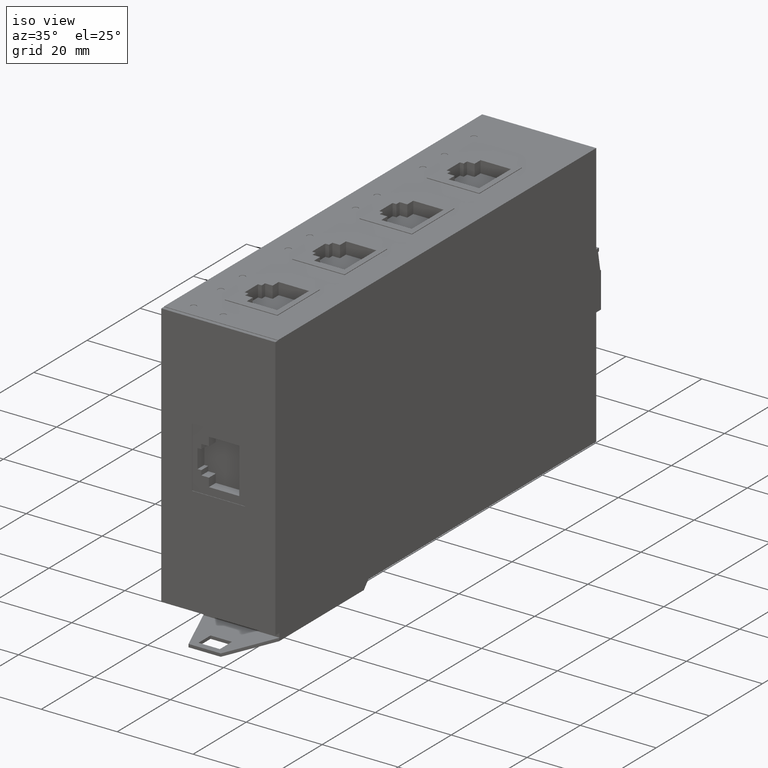
[diagram: clean part render]
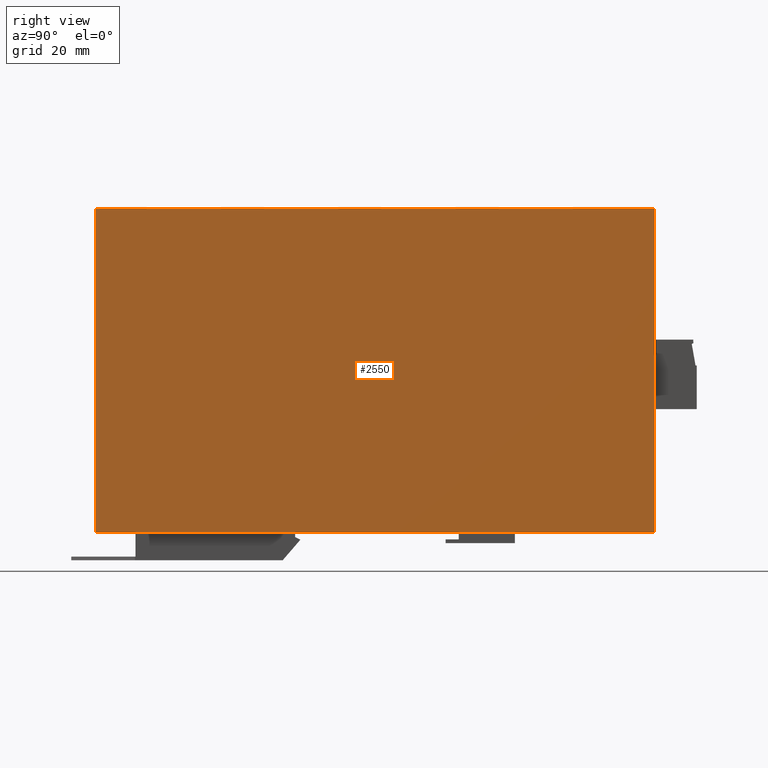
[diagram: tour spotlight — one face highlighted and labeled with its STEP entity id]
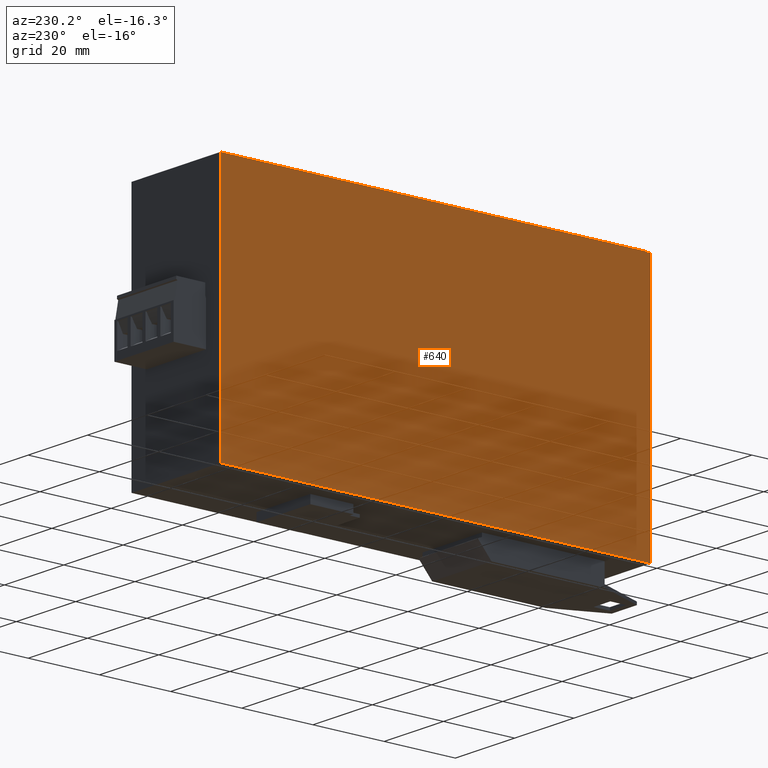
[diagram: tour spotlight — one face highlighted and labeled with its STEP entity id]
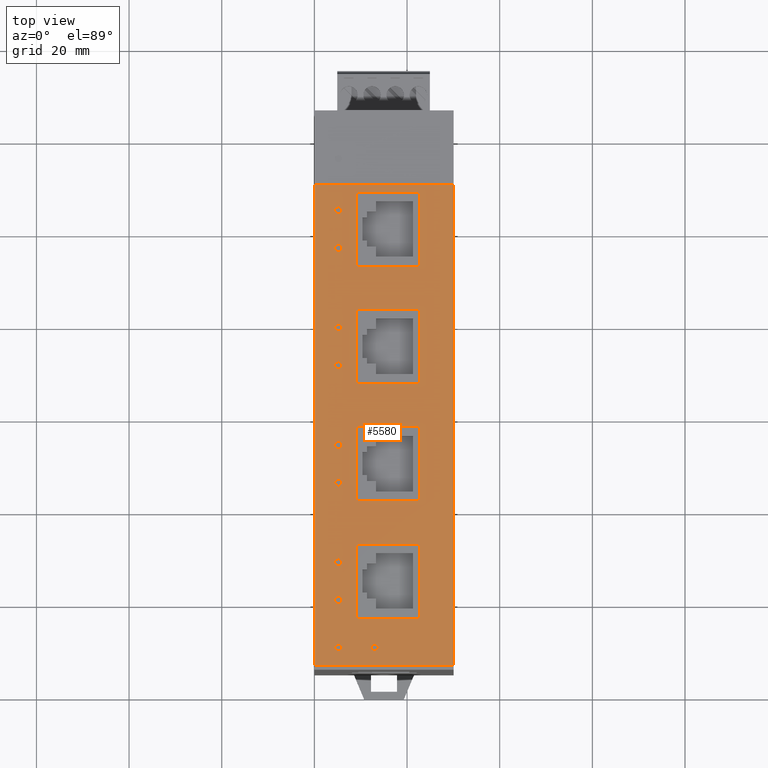
[diagram: tour spotlight — one face highlighted and labeled with its STEP entity id]
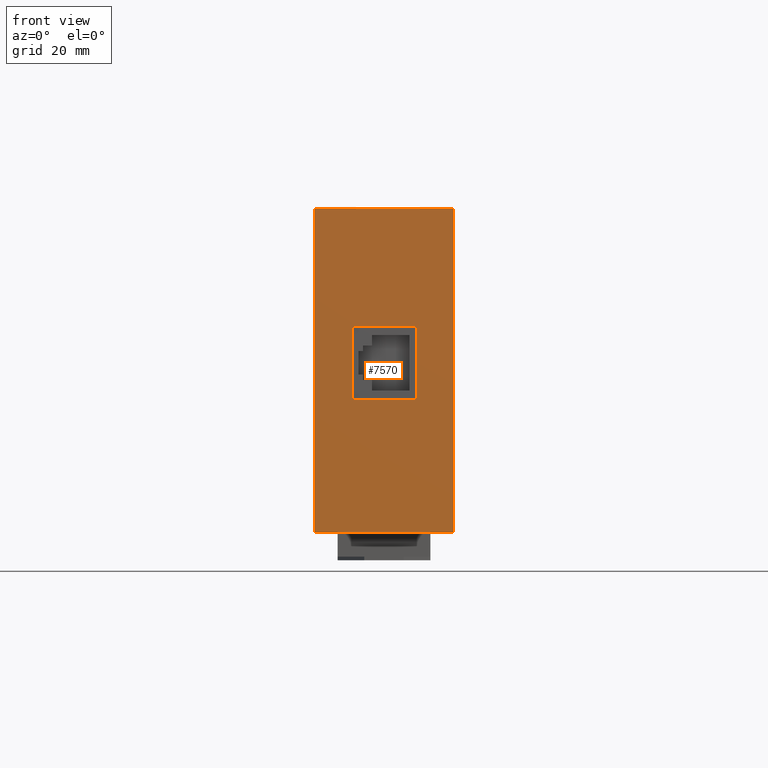
[diagram: tour spotlight — one face highlighted and labeled with its STEP entity id]
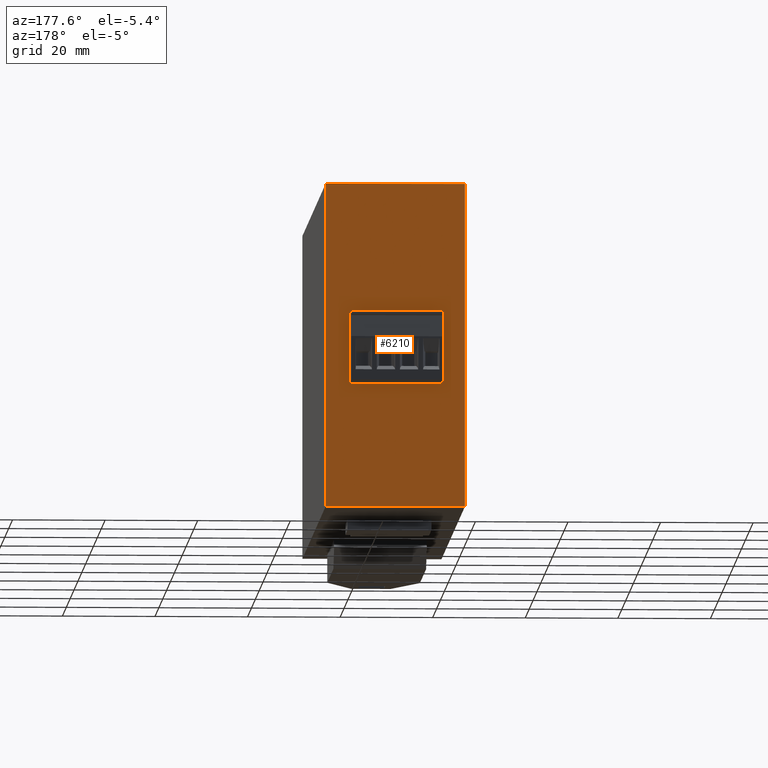
[diagram: tour spotlight — one face highlighted and labeled with its STEP entity id]
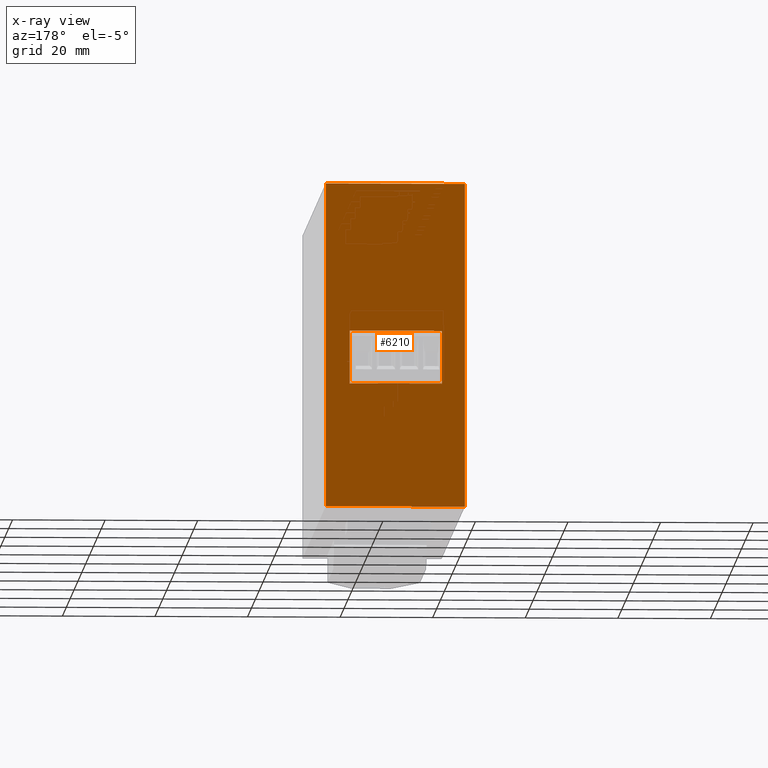
[diagram: x-ray of the same camera — body ghosted, this tour face saturated]
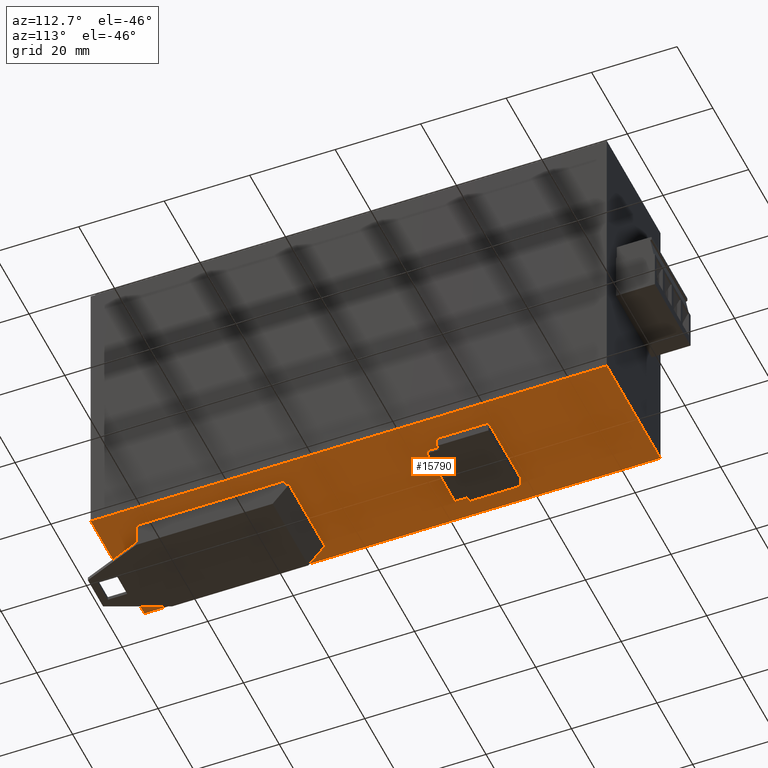
[diagram: tour spotlight — one face highlighted and labeled with its STEP entity id]
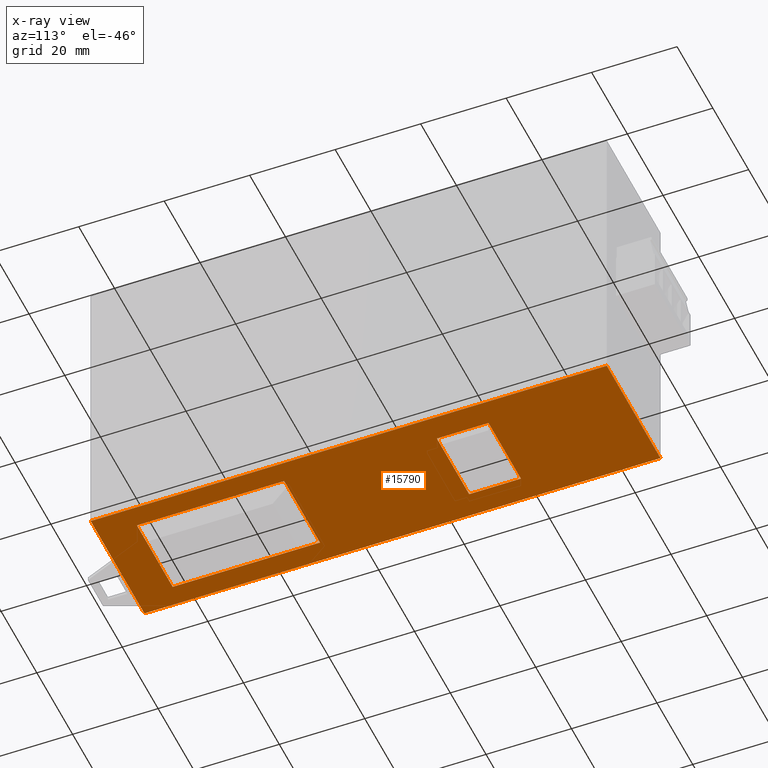
[diagram: x-ray of the same camera — body ghosted, this tour face saturated]
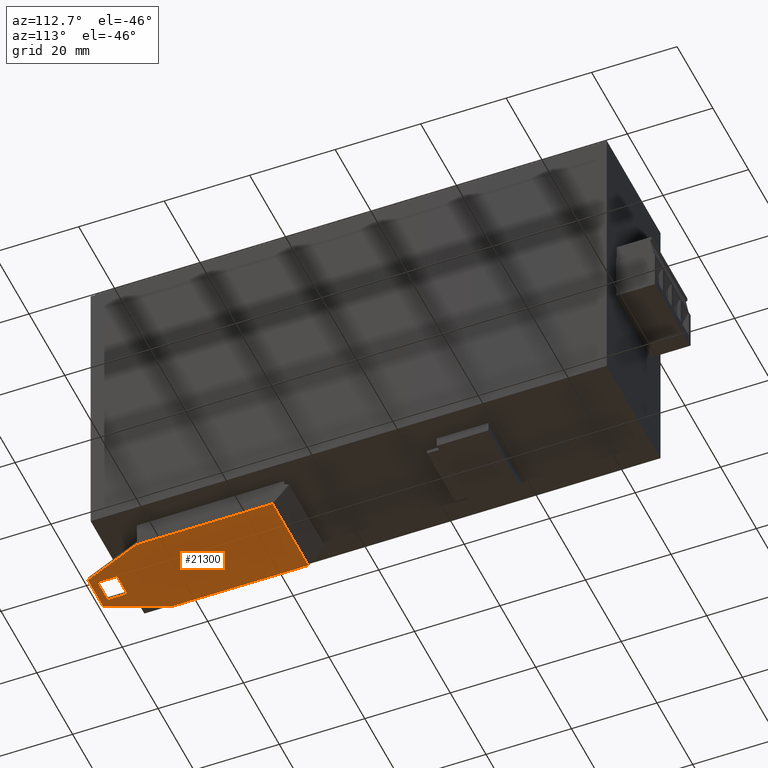
[diagram: tour spotlight — one face highlighted and labeled with its STEP entity id]
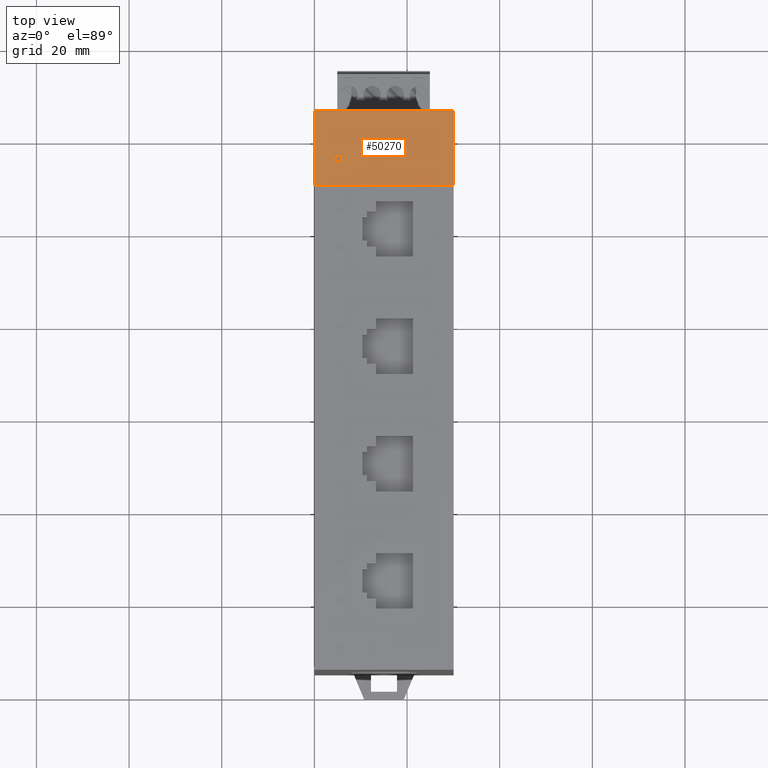
[diagram: tour spotlight — one face highlighted and labeled with its STEP entity id]
A machine part: a face-by-face anatomy tour. The part has 281 B-rep faces; the first image is the clean iso view, then the 8 largest visible faces are spotlighted one at a time (largest first), each with its STEP entity span.

Face 1 — right view, entity #2550. In plain terms, the highlighted planar face has unit normal (1, 0, 0).
Definition (entity closure, byte-faithful):
#700=CARTESIAN_POINT('',(-16.9973015873009,-61.6121031746032,0.));
#710=DIRECTION('',(0.,0.,1.));
#720=VECTOR('',#710,1.);
#730=LINE('',#700,#720);
#740=CARTESIAN_POINT('',(-16.9973015873009,-61.6121031746032,0.));
#750=VERTEX_POINT('',#740);
#760=CARTESIAN_POINT('',(-16.9973015873009,-61.6121031746032,0.1016));
#770=VERTEX_POINT('',#760);
#780=EDGE_CURVE('',#750,#770,#730,.T.);
#1930=CARTESIAN_POINT('',(-16.9973015873009,0.,0.));
#1940=DIRECTION('',(0.,1.,0.));
#1950=VECTOR('',#1940,1.);
#1960=LINE('',#1930,#1950);
#1970=CARTESIAN_POINT('',(-16.9973015873009,-62.6121031746032,0.));
#1980=VERTEX_POINT('',#1970);
#1990=EDGE_CURVE('',#1980,#750,#1960,.T.);
#2120=CARTESIAN_POINT('',(-16.9973015873009,-53.2521031746032,
-214.905315529327));
#2130=DIRECTION('',(1.,-0.,0.));
#2140=DIRECTION('',(0.,0.,-1.));
#2150=AXIS2_PLACEMENT_3D('',#2120,#2130,#2140);
#2160=PLANE('',#2150);
#2170=CARTESIAN_POINT('',(-16.9973015873009,0.,0.1016));
#2180=DIRECTION('',(0.,-1.,0.));
#2190=VECTOR('',#2180,1.);
#2200=LINE('',#2170,#2190);
#2210=CARTESIAN_POINT('',(-16.9973015873009,58.1578968253969,0.1016));
#2220=VERTEX_POINT('',#2210);
#2230=CARTESIAN_POINT('',(-16.9973015873009,42.0178968253968,0.1016));
#2240=VERTEX_POINT('',#2230);
#2250=EDGE_CURVE('',#2220,#2240,#2200,.T.);
#2260=ORIENTED_EDGE('',*,*,#2250,.T.);
#2270=CARTESIAN_POINT('',(-16.9973015873009,58.1578968253969,0.));
#2280=DIRECTION('',(0.,0.,1.));
#2290=VECTOR('',#2280,1.);
#2300=LINE('',#2270,#2290);
#2310=CARTESIAN_POINT('',(-16.9973015873009,58.1578968253969,-69.85));
#2320=VERTEX_POINT('',#2310);
#2330=EDGE_CURVE('',#2320,#2220,#2300,.T.);
#2340=ORIENTED_EDGE('',*,*,#2330,.T.);
#2350=CARTESIAN_POINT('',(-16.9973015873009,0.,-69.85));
#2360=DIRECTION('',(0.,-1.,0.));
#2370=VECTOR('',#2360,1.);
#2380=LINE('',#2350,#2370);
#2390=CARTESIAN_POINT('',(-16.9973015873009,-62.6121031746032,-69.85));
#2400=VERTEX_POINT('',#2390);
#2410=EDGE_CURVE('',#2320,#2400,#2380,.T.);
#2420=ORIENTED_EDGE('',*,*,#2410,.F.);
#2430=CARTESIAN_POINT('',(-16.9973015873009,-62.6121031746032,0.));
#2440=DIRECTION('',(0.,0.,1.));
#2450=VECTOR('',#2440,1.);
#2460=LINE('',#2430,#2450);
#2470=EDGE_CURVE('',#2400,#1980,#2460,.T.);
#2480=ORIENTED_EDGE('',*,*,#2470,.F.);
#2490=ORIENTED_EDGE('',*,*,#1990,.F.);
#2500=ORIENTED_EDGE('',*,*,#780,.F.);
#2510=EDGE_CURVE('',#2240,#770,#2200,.T.);
#2520=ORIENTED_EDGE('',*,*,#2510,.T.);
#2530=EDGE_LOOP('',(#2520,#2500,#2490,#2480,#2420,#2340,#2260));
#2540=FACE_OUTER_BOUND('',#2530,.T.);
#2550=ADVANCED_FACE('',(#2540),#2160,.T.);

Face 2 — auxiliary view, entity #640. In plain terms, the highlighted planar face has unit normal (-1, 0, 0).
Definition (entity closure, byte-faithful):
#10=CARTESIAN_POINT('',(-47.0473015873009,48.3978968253968,
-184.855315529327));
#20=DIRECTION('',(-1.,5.91329245969732E-18,0.));
#30=DIRECTION('',(-5.91329245969732E-18,-1.,0.));
#40=AXIS2_PLACEMENT_3D('',#10,#20,#30);
#50=PLANE('',#40);
#60=CARTESIAN_POINT('',(-47.0473015873009,-62.6121031746032,0.));
#70=DIRECTION('',(0.,0.,1.));
#80=VECTOR('',#70,1.);
#90=LINE('',#60,#80);
#100=CARTESIAN_POINT('',(-47.0473015873009,-62.6121031746032,-69.85));
#110=VERTEX_POINT('',#100);
#120=CARTESIAN_POINT('',(-47.0473015873009,-62.6121031746032,0.));
#130=VERTEX_POINT('',#120);
#140=EDGE_CURVE('',#110,#130,#90,.T.);
#150=ORIENTED_EDGE('',*,*,#140,.T.);
#160=CARTESIAN_POINT('',(-47.0473015873009,0.,-69.85));
#170=DIRECTION('',(5.91329245969732E-18,1.,0.));
#180=VECTOR('',#170,1.);
#190=LINE('',#160,#180);
#200=CARTESIAN_POINT('',(-47.0473015873009,58.1578968253969,-69.85));
#210=VERTEX_POINT('',#200);
#220=EDGE_CURVE('',#110,#210,#190,.T.);
#230=ORIENTED_EDGE('',*,*,#220,.F.);
#240=CARTESIAN_POINT('',(-47.0473015873009,58.1578968253969,0.));
#250=DIRECTION('',(0.,0.,-1.));
#260=VECTOR('',#250,1.);
#270=LINE('',#240,#260);
#280=CARTESIAN_POINT('',(-47.0473015873009,58.1578968253969,0.1016));
#290=VERTEX_POINT('',#280);
#300=EDGE_CURVE('',#290,#210,#270,.T.);
#310=ORIENTED_EDGE('',*,*,#300,.T.);
#320=CARTESIAN_POINT('',(-47.0473015873009,0.,0.1016));
#330=DIRECTION('',(5.91329245969732E-18,1.,0.));
#340=VECTOR('',#330,1.);
#350=LINE('',#320,#340);
#360=CARTESIAN_POINT('',(-47.0473015873009,42.0178968253968,0.1016));
#370=VERTEX_POINT('',#360);
#380=EDGE_CURVE('',#370,#290,#350,.T.);
#390=ORIENTED_EDGE('',*,*,#380,.T.);
#400=CARTESIAN_POINT('',(-47.0473015873009,0.,0.1016));
#410=DIRECTION('',(5.91329245969732E-18,1.,0.));
#420=VECTOR('',#410,1.);
#430=LINE('',#400,#420);
#440=CARTESIAN_POINT('',(-47.0473015873009,-61.6121031746032,0.1016));
#450=VERTEX_POINT('',#440);
#460=EDGE_CURVE('',#450,#370,#430,.T.);
#470=ORIENTED_EDGE('',*,*,#460,.T.);
#480=CARTESIAN_POINT('',(-47.0473015873009,-61.6121031746032,0.));
#490=DIRECTION('',(0.,0.,-1.));
#500=VECTOR('',#490,1.);
#510=LINE('',#480,#500);
#520=CARTESIAN_POINT('',(-47.0473015873009,-61.6121031746032,0.));
#530=VERTEX_POINT('',#520);
#540=EDGE_CURVE('',#450,#530,#510,.T.);
#550=ORIENTED_EDGE('',*,*,#540,.F.);
#560=CARTESIAN_POINT('',(-47.0473015873009,0.,0.));
#570=DIRECTION('',(-5.91329245969732E-18,-1.,0.));
#580=VECTOR('',#570,1.);
#590=LINE('',#560,#580);
#600=EDGE_CURVE('',#530,#130,#590,.T.);
#610=ORIENTED_EDGE('',*,*,#600,.F.);
#620=EDGE_LOOP('',(#610,#550,#470,#390,#310,#230,#150));
#630=FACE_OUTER_BOUND('',#620,.T.);
#640=ADVANCED_FACE('',(#630),#50,.T.);

Face 3 — top view, entity #5580. In plain terms, the highlighted planar face has unit normal (0, 0, -1).
Definition (entity closure, byte-faithful):
#360=CARTESIAN_POINT('',(-47.0473015873009,42.0178968253968,0.1016));
#370=VERTEX_POINT('',#360);
#400=CARTESIAN_POINT('',(-47.0473015873009,0.,0.1016));
#410=DIRECTION('',(5.91329245969732E-18,1.,0.));
#420=VECTOR('',#410,1.);
#430=LINE('',#400,#420);
#440=CARTESIAN_POINT('',(-47.0473015873009,-61.6121031746032,0.1016));
#450=VERTEX_POINT('',#440);
#460=EDGE_CURVE('',#450,#370,#430,.T.);
#760=CARTESIAN_POINT('',(-16.9973015873009,-61.6121031746032,0.1016));
#770=VERTEX_POINT('',#760);
#870=CARTESIAN_POINT('',(0.,-61.6121031746032,0.1016));
#880=DIRECTION('',(-1.,0.,0.));
#890=VECTOR('',#880,1.);
#900=LINE('',#870,#890);
#910=EDGE_CURVE('',#770,#450,#900,.T.);
#2170=CARTESIAN_POINT('',(-16.9973015873009,0.,0.1016));
#2180=DIRECTION('',(0.,-1.,0.));
#2190=VECTOR('',#2180,1.);
#2200=LINE('',#2170,#2190);
#2230=CARTESIAN_POINT('',(-16.9973015873009,42.0178968253968,0.1016));
#2240=VERTEX_POINT('',#2230);
#2510=EDGE_CURVE('',#2240,#770,#2200,.T.);
#2560=CARTESIAN_POINT('',(-17.9973015873009,57.1578968253968,0.1016));
#2570=DIRECTION('',(0.,0.,-1.));
#2580=DIRECTION('',(-1.,0.,0.));
#2590=AXIS2_PLACEMENT_3D('',#2560,#2570,#2580);
#2600=PLANE('',#2590);
#2610=CARTESIAN_POINT('',(-24.2773015873009,0.,0.1016));
#2620=DIRECTION('',(-3.46944695195361E-16,-1.,0.));
#2630=VECTOR('',#2620,1.);
#2640=LINE('',#2610,#2630);
#2650=CARTESIAN_POINT('',(-24.2773015873009,-10.1421031746032,0.1016));
#2660=VERTEX_POINT('',#2650);
#2670=CARTESIAN_POINT('',(-24.2773015873009,-26.1421031746032,0.1016));
#2680=VERTEX_POINT('',#2670);
#2690=EDGE_CURVE('',#2660,#2680,#2640,.T.);
#2700=ORIENTED_EDGE('',*,*,#2690,.T.);
#2710=CARTESIAN_POINT('',(0.,-10.1421031746032,0.1016));
#2720=DIRECTION('',(1.,-3.46944695195361E-16,0.));
#2730=VECTOR('',#2720,1.);
#2740=LINE('',#2710,#2730);
#2750=CARTESIAN_POINT('',(-38.0773015873009,-10.1421031746031,0.1016));
#2760=VERTEX_POINT('',#2750);
#2770=EDGE_CURVE('',#2760,#2660,#2740,.T.);
#2780=ORIENTED_EDGE('',*,*,#2770,.T.);
#2790=CARTESIAN_POINT('',(-38.0773015873009,0.,0.1016));
#2800=DIRECTION('',(-7.35943292838645E-17,1.,0.));
#2810=VECTOR('',#2800,1.);
#2820=LINE('',#2790,#2810);
#2830=CARTESIAN_POINT('',(-38.0773015873009,-26.1421031746032,0.1016));
#2840=VERTEX_POINT('',#2830);
#2850=EDGE_CURVE('',#2840,#2760,#2820,.T.);
#2860=ORIENTED_EDGE('',*,*,#2850,.T.);
#2870=CARTESIAN_POINT('',(0.,-26.1421031746032,0.1016));
#2880=DIRECTION('',(-1.,3.46944695195361E-16,0.));
#2890=VECTOR('',#2880,1.);
#2900=LINE('',#2870,#2890);
#2910=EDGE_CURVE('',#2680,#2840,#2900,.T.);
#2920=ORIENTED_EDGE('',*,*,#2910,.T.);
#2930=EDGE_LOOP('',(#2920,#2860,#2780,#2700));
#2940=FACE_BOUND('',#2930,.T.);
#2950=CARTESIAN_POINT('',(-41.8833015873009,11.2578968253968,0.1016));
#2960=DIRECTION('',(0.,0.,1.));
#2970=DIRECTION('',(1.,0.,0.));
#2980=AXIS2_PLACEMENT_3D('',#2950,#2960,#2970);
#2990=CIRCLE('',#2980,0.762);
#3000=CARTESIAN_POINT('',(-42.6453015873009,11.2578968253968,0.1016));
#3010=VERTEX_POINT('',#3000);
#3020=CARTESIAN_POINT('',(-41.1213015873009,11.2578968253968,0.1016));
#3030=VERTEX_POINT('',#3020);
#3040=EDGE_CURVE('',#3010,#3030,#2990,.T.);
#3050=ORIENTED_EDGE('',*,*,#3040,.F.);
#3060=EDGE_CURVE('',#3030,#3010,#2990,.T.);
#3070=ORIENTED_EDGE('',*,*,#3060,.F.);
#3080=EDGE_LOOP('',(#3070,#3050));
#3090=FACE_BOUND('',#3080,.T.);
#3100=CARTESIAN_POINT('',(-41.8833015873009,36.5878968253968,0.1016));
#3110=DIRECTION('',(0.,0.,1.));
#3120=DIRECTION('',(1.,0.,0.));
#3130=AXIS2_PLACEMENT_3D('',#3100,#3110,#3120);
#3140=CIRCLE('',#3130,0.762);
#3150=CARTESIAN_POINT('',(-42.6453015873009,36.5878968253968,0.1016));
#3160=VERTEX_POINT('',#3150);
#3170=CARTESIAN_POINT('',(-41.1213015873009,36.5878968253968,0.1016));
#3180=VERTEX_POINT('',#3170);
#3190=EDGE_CURVE('',#3160,#3180,#3140,.T.);
#3200=ORIENTED_EDGE('',*,*,#3190,.F.);
#3210=EDGE_CURVE('',#3180,#3160,#3140,.T.);
#3220=ORIENTED_EDGE('',*,*,#3210,.F.);
#3230=EDGE_LOOP('',(#3220,#3200));
#3240=FACE_BOUND('',#3230,.T.);
#3250=CARTESIAN_POINT('',(-41.8833015873009,28.4478968253969,0.1016));
#3260=DIRECTION('',(0.,0.,1.));
#3270=DIRECTION('',(-1.,0.,0.));
#3280=AXIS2_PLACEMENT_3D('',#3250,#3260,#3270);
#3290=CIRCLE('',#3280,0.761999999999999);
#3300=CARTESIAN_POINT('',(-42.6453015873009,28.4478968253969,0.1016));
#3310=VERTEX_POINT('',#3300);
#3320=CARTESIAN_POINT('',(-41.1213015873009,28.4478968253969,0.1016));
#3330=VERTEX_POINT('',#3320);
#3340=EDGE_CURVE('',#3310,#3330,#3290,.T.);
#3350=ORIENTED_EDGE('',*,*,#3340,.F.);
#3360=EDGE_CURVE('',#3330,#3310,#3290,.T.);
#3370=ORIENTED_EDGE('',*,*,#3360,.F.);
#3380=EDGE_LOOP('',(#3370,#3350));
#3390=FACE_BOUND('',#3380,.T.);
#3400=CARTESIAN_POINT('',(-41.8833015873009,-57.8173394837052,0.1016));
#3410=DIRECTION('',(0.,0.,1.));
#3420=DIRECTION('',(1.,0.,0.));
#3430=AXIS2_PLACEMENT_3D('',#3400,#3410,#3420);
#3440=CIRCLE('',#3430,0.762);
#3450=CARTESIAN_POINT('',(-42.6453015873009,-57.8173394837052,0.1016));
#3460=VERTEX_POINT('',#3450);
#3470=CARTESIAN_POINT('',(-41.1213015873009,-57.8173394837052,0.1016));
#3480=VERTEX_POINT('',#3470);
#3490=EDGE_CURVE('',#3460,#3480,#3440,.T.);
#3500=ORIENTED_EDGE('',*,*,#3490,.F.);
#3510=EDGE_CURVE('',#3480,#3460,#3440,.T.);
#3520=ORIENTED_EDGE('',*,*,#3510,.F.);
#3530=EDGE_LOOP('',(#3520,#3500));
#3540=FACE_BOUND('',#3530,.T.);
#3550=CARTESIAN_POINT('',(-41.8833015873009,3.11789682539685,0.1016));
#3560=DIRECTION('',(0.,0.,1.));
#3570=DIRECTION('',(-1.,0.,0.));
#3580=AXIS2_PLACEMENT_3D('',#3550,#3560,#3570);
#3590=CIRCLE('',#3580,0.761999999999999);
#3600=CARTESIAN_POINT('',(-41.1213015873009,3.11789682539685,0.1016));
#3610=VERTEX_POINT('',#3600);
#3620=CARTESIAN_POINT('',(-42.6453015873009,3.11789682539685,0.1016));
#3630=VERTEX_POINT('',#3620);
#3640=EDGE_CURVE('',#3610,#3630,#3590,.T.);
#3650=ORIENTED_EDGE('',*,*,#3640,.F.);
#3660=EDGE_CURVE('',#3630,#3610,#3590,.T.);
#3670=ORIENTED_EDGE('',*,*,#3660,.F.);
#3680=EDGE_LOOP('',(#3670,#3650));
#3690=FACE_BOUND('',#3680,.T.);
#3700=CARTESIAN_POINT('',(-41.8833015873009,-14.0721031746032,0.1016));
#3710=DIRECTION('',(0.,0.,1.));
#3720=DIRECTION('',(1.,0.,0.));
#3730=AXIS2_PLACEMENT_3D('',#3700,#3710,#3720);
#3740=CIRCLE('',#3730,0.762);
#3750=CARTESIAN_POINT('',(-41.1213015873009,-14.0721031746032,0.1016));
#3760=VERTEX_POINT('',#3750);
#3770=CARTESIAN_POINT('',(-42.6453015873009,-14.0721031746032,0.1016));
#3780=VERTEX_POINT('',#3770);
#3790=EDGE_CURVE('',#3760,#3780,#3740,.T.);
#3800=ORIENTED_EDGE('',*,*,#3790,.F.);
#3810=EDGE_CURVE('',#3780,#3760,#3740,.T.);
#3820=ORIENTED_EDGE('',*,*,#3810,.F.);
#3830=EDGE_LOOP('',(#3820,#3800));
#3840=FACE_BOUND('',#3830,.T.);
#3850=CARTESIAN_POINT('',(-41.8833015873009,-39.4021031746032,0.1016));
#3860=DIRECTION('',(0.,0.,1.));
#3870=DIRECTION('',(1.,0.,0.));
#3880=AXIS2_PLACEMENT_3D('',#3850,#3860,#3870);
#3890=CIRCLE('',#3880,0.762);
#3900=CARTESIAN_POINT('',(-41.1213015873009,-39.4021031746032,0.1016));
#3910=VERTEX_POINT('',#3900);
#3920=CARTESIAN_POINT('',(-42.6453015873009,-39.4021031746032,0.1016));
#3930=VERTEX_POINT('',#3920);
#3940=EDGE_CURVE('',#3910,#3930,#3890,.T.);
#3950=ORIENTED_EDGE('',*,*,#3940,.F.);
#3960=EDGE_CURVE('',#3930,#3910,#3890,.T.);
#3970=ORIENTED_EDGE('',*,*,#3960,.F.);
#3980=EDGE_LOOP('',(#3970,#3950));
#3990=FACE_BOUND('',#3980,.T.);
#4000=CARTESIAN_POINT('',(-41.8833015873009,-22.2121031746032,0.1016));
#4010=DIRECTION('',(0.,0.,1.));
#4020=DIRECTION('',(-1.,0.,0.));
#4030=AXIS2_PLACEMENT_3D('',#4000,#4010,#4020);
#4040=CIRCLE('',#4030,0.761999999999999);
#4050=CARTESIAN_POINT('',(-41.1213015873009,-22.2121031746032,0.1016));
#4060=VERTEX_POINT('',#4050);
#4070=CARTESIAN_POINT('',(-42.6453015873009,-22.2121031746032,0.1016));
#4080=VERTEX_POINT('',#4070);
#4090=EDGE_CURVE('',#4060,#4080,#4040,.T.);
#4100=ORIENTED_EDGE('',*,*,#4090,.F.);
#4110=EDGE_CURVE('',#4080,#4060,#4040,.T.);
#4120=ORIENTED_EDGE('',*,*,#4110,.F.);
#4130=EDGE_LOOP('',(#4120,#4100));
#4140=FACE_BOUND('',#4130,.T.);
#4150=CARTESIAN_POINT('',(-34.0452326901136,-57.8173394837052,0.1016));
#4160=DIRECTION('',(0.,0.,1.));
#4170=DIRECTION('',(1.,0.,0.));
#4180=AXIS2_PLACEMENT_3D('',#4150,#4160,#4170);
#4190=CIRCLE('',#4180,0.761999999999999);
#4200=CARTESIAN_POINT('',(-34.8072326901136,-57.8173394837052,0.1016));
#4210=VERTEX_POINT('',#4200);
#4220=CARTESIAN_POINT('',(-33.2832326901136,-57.8173394837052,0.1016));
#4230=VERTEX_POINT('',#4220);
#4240=EDGE_CURVE('',#4210,#4230,#4190,.T.);
#4250=ORIENTED_EDGE('',*,*,#4240,.F.);
#4260=EDGE_CURVE('',#4230,#4210,#4190,.T.);
#4270=ORIENTED_EDGE('',*,*,#4260,.F.);
#4280=EDGE_LOOP('',(#4270,#4250));
#4290=FACE_BOUND('',#4280,.T.);
#4300=CARTESIAN_POINT('',(-41.8833015873009,-47.5421031746032,0.1016));
#4310=DIRECTION('',(0.,0.,1.));
#4320=DIRECTION('',(-1.,0.,0.));
#4330=AXIS2_PLACEMENT_3D('',#4300,#4310,#4320);
#4340=CIRCLE('',#4330,0.761999999999999);
#4350=CARTESIAN_POINT('',(-41.1213015873009,-47.5421031746032,0.1016));
#4360=VERTEX_POINT('',#4350);
#4370=CARTESIAN_POINT('',(-42.6453015873009,-47.5421031746032,0.1016));
#4380=VERTEX_POINT('',#4370);
#4390=EDGE_CURVE('',#4360,#4380,#4340,.T.);
#4400=ORIENTED_EDGE('',*,*,#4390,.F.);
#4410=EDGE_CURVE('',#4380,#4360,#4340,.T.);
#4420=ORIENTED_EDGE('',*,*,#4410,.F.);
#4430=EDGE_LOOP('',(#4420,#4400));
#4440=FACE_BOUND('',#4430,.T.);
#4450=CARTESIAN_POINT('',(0.,-51.4721031746032,0.1016));
#4460=DIRECTION('',(-1.,3.46944695195361E-16,0.));
#4470=VECTOR('',#4460,1.);
#4480=LINE('',#4450,#4470);
#4490=CARTESIAN_POINT('',(-24.2773015873009,-51.4721031746031,0.1016));
#4500=VERTEX_POINT('',#4490);
#4510=CARTESIAN_POINT('',(-38.0773015873009,-51.4721031746031,0.1016));
#4520=VERTEX_POINT('',#4510);
#4530=EDGE_CURVE('',#4500,#4520,#4480,.T.);
#4540=ORIENTED_EDGE('',*,*,#4530,.T.);
#4550=CARTESIAN_POINT('',(-24.2773015873009,0.,0.1016));
#4560=DIRECTION('',(-3.46944695195361E-16,-1.,0.));
#4570=VECTOR('',#4560,1.);
#4580=LINE('',#4550,#4570);
#4590=CARTESIAN_POINT('',(-24.2773015873009,-35.4721031746031,0.1016));
#4600=VERTEX_POINT('',#4590);
#4610=EDGE_CURVE('',#4600,#4500,#4580,.T.);
#4620=ORIENTED_EDGE('',*,*,#4610,.T.);
#4630=CARTESIAN_POINT('',(0.,-35.4721031746032,0.1016));
#4640=DIRECTION('',(1.,-3.46944695195361E-16,0.));
#4650=VECTOR('',#4640,1.);
#4660=LINE('',#4630,#4650);
#4670=CARTESIAN_POINT('',(-38.0773015873009,-35.4721031746031,0.1016));
#4680=VERTEX_POINT('',#4670);
#4690=EDGE_CURVE('',#4680,#4600,#4660,.T.);
#4700=ORIENTED_EDGE('',*,*,#4690,.T.);
#4710=CARTESIAN_POINT('',(-38.0773015873009,0.,0.1016));
#4720=DIRECTION('',(-7.35943292838645E-17,1.,0.));
#4730=VECTOR('',#4720,1.);
#4740=LINE('',#4710,#4730);
#4750=EDGE_CURVE('',#4520,#4680,#4740,.T.);
#4760=ORIENTED_EDGE('',*,*,#4750,.T.);
#4770=EDGE_LOOP('',(#4760,#4700,#4620,#4540));
#4780=FACE_BOUND('',#4770,.T.);
#4790=CARTESIAN_POINT('',(0.,40.5178968253968,0.1016));
#4800=DIRECTION('',(1.,-3.46944695195361E-16,0.));
#4810=VECTOR('',#4800,1.);
#4820=LINE('',#4790,#4810);
#4830=CARTESIAN_POINT('',(-38.0773015873009,40.5178968253969,0.1016));
#4840=VERTEX_POINT('',#4830);
#4850=CARTESIAN_POINT('',(-24.2773015873009,40.5178968253968,0.1016));
#4860=VERTEX_POINT('',#4850);
#4870=EDGE_CURVE('',#4840,#4860,#4820,.T.);
#4880=ORIENTED_EDGE('',*,*,#4870,.T.);
#4890=CARTESIAN_POINT('',(-38.0773015873009,0.,0.1016));
#4900=DIRECTION('',(-7.35943292838645E-17,1.,0.));
#4910=VECTOR('',#4900,1.);
#4920=LINE('',#4890,#4910);
#4930=CARTESIAN_POINT('',(-38.0773015873009,24.5178968253969,0.1016));
#4940=VERTEX_POINT('',#4930);
#4950=EDGE_CURVE('',#4940,#4840,#4920,.T.);
#4960=ORIENTED_EDGE('',*,*,#4950,.T.);
#4970=CARTESIAN_POINT('',(0.,24.5178968253968,0.1016));
#4980=DIRECTION('',(-1.,3.46944695195361E-16,0.));
#4990=VECTOR('',#4980,1.);
#5000=LINE('',#4970,#4990);
#5010=CARTESIAN_POINT('',(-24.2773015873009,24.5178968253969,0.1016));
#5020=VERTEX_POINT('',#5010);
#5030=EDGE_CURVE('',#5020,#4940,#5000,.T.);
#5040=ORIENTED_EDGE('',*,*,#5030,.T.);
#5050=CARTESIAN_POINT('',(-24.2773015873009,0.,0.1016));
#5060=DIRECTION('',(-3.46944695195361E-16,-1.,0.));
#5070=VECTOR('',#5060,1.);
#5080=LINE('',#5050,#5070);
#5090=EDGE_CURVE('',#4860,#5020,#5080,.T.);
#5100=ORIENTED_EDGE('',*,*,#5090,.T.);
#5110=EDGE_LOOP('',(#5100,#5040,#4960,#4880));
#5120=FACE_BOUND('',#5110,.T.);
#5130=CARTESIAN_POINT('',(0.,-0.812103174603168,0.1016));
#5140=DIRECTION('',(-1.,3.46944695195361E-16,0.));
#5150=VECTOR('',#5140,1.);
#5160=LINE('',#5130,#5150);
#5170=CARTESIAN_POINT('',(-24.2773015873009,-0.812103174603159,0.1016));
#5180=VERTEX_POINT('',#5170);
#5190=CARTESIAN_POINT('',(-38.0773015873009,-0.812103174603154,0.1016));
#5200=VERTEX_POINT('',#5190);
#5210=EDGE_CURVE('',#5180,#5200,#5160,.T.);
#5220=ORIENTED_EDGE('',*,*,#5210,.T.);
#5230=CARTESIAN_POINT('',(-24.2773015873009,0.,0.1016));
#5240=DIRECTION('',(-3.46944695195361E-16,-1.,0.));
#5250=VECTOR('',#5240,1.);
#5260=LINE('',#5230,#5250);
#5270=CARTESIAN_POINT('',(-24.2773015873009,15.1878968253968,0.1016));
#5280=VERTEX_POINT('',#5270);
#5290=EDGE_CURVE('',#5280,#5180,#5260,.T.);
#5300=ORIENTED_EDGE('',*,*,#5290,.T.);
#5310=CARTESIAN_POINT('',(0.,15.1878968253968,0.1016));
#5320=DIRECTION('',(1.,-3.46944695195361E-16,0.));
#5330=VECTOR('',#5320,1.);
#5340=LINE('',#5310,#5330);
#5350=CARTESIAN_POINT('',(-38.0773015873009,15.1878968253968,0.1016));
#5360=VERTEX_POINT('',#5350);
#5370=EDGE_CURVE('',#5360,#5280,#5340,.T.);
#5380=ORIENTED_EDGE('',*,*,#5370,.T.);
#5390=CARTESIAN_POINT('',(-38.0773015873009,0.,0.1016));
#5400=DIRECTION('',(-7.35943292838645E-17,1.,0.));
#5410=VECTOR('',#5400,1.);
#5420=LINE('',#5390,#5410);
#5430=EDGE_CURVE('',#5200,#5360,#5420,.T.);
#5440=ORIENTED_EDGE('',*,*,#5430,.T.);
#5450=EDGE_LOOP('',(#5440,#5380,#5300,#5220));
#5460=FACE_BOUND('',#5450,.T.);
#5470=ORIENTED_EDGE('',*,*,#460,.F.);
#5480=CARTESIAN_POINT('',(0.,42.0178968253968,0.1016));
#5490=DIRECTION('',(-1.,0.,0.));
#5500=VECTOR('',#5490,1.);
#5510=LINE('',#5480,#5500);
#5520=EDGE_CURVE('',#2240,#370,#5510,.T.);
#5530=ORIENTED_EDGE('',*,*,#5520,.T.);
#5540=ORIENTED_EDGE('',*,*,#2510,.F.);
#5550=ORIENTED_EDGE('',*,*,#910,.F.);
#5560=EDGE_LOOP('',(#5550,#5540,#5530,#5470));
#5570=FACE_OUTER_BOUND('',#5560,.T.);
#5580=ADVANCED_FACE('',(#2940,#3090,#3240,#3390,#3540,#3690,#3840,#3990,
#4140,#4290,#4440,#4780,#5120,#5460,#5570),#2600,.F.);

Face 4 — front view, entity #7570. In plain terms, the highlighted planar face has unit normal (0, -1, 0).
Definition (entity closure, byte-faithful):
#60=CARTESIAN_POINT('',(-47.0473015873009,-62.6121031746032,0.));
#70=DIRECTION('',(0.,0.,1.));
#80=VECTOR('',#70,1.);
#90=LINE('',#60,#80);
#100=CARTESIAN_POINT('',(-47.0473015873009,-62.6121031746032,-69.85));
#110=VERTEX_POINT('',#100);
#120=CARTESIAN_POINT('',(-47.0473015873009,-62.6121031746032,0.));
#130=VERTEX_POINT('',#120);
#140=EDGE_CURVE('',#110,#130,#90,.T.);
#1970=CARTESIAN_POINT('',(-16.9973015873009,-62.6121031746032,0.));
#1980=VERTEX_POINT('',#1970);
#2010=CARTESIAN_POINT('',(0.,-62.6121031746032,0.));
#2020=DIRECTION('',(1.,6.18439741881215E-17,0.));
#2030=VECTOR('',#2020,1.);
#2040=LINE('',#2010,#2030);
#2050=EDGE_CURVE('',#130,#1980,#2040,.T.);
#2390=CARTESIAN_POINT('',(-16.9973015873009,-62.6121031746032,-69.85));
#2400=VERTEX_POINT('',#2390);
#2430=CARTESIAN_POINT('',(-16.9973015873009,-62.6121031746032,0.));
#2440=DIRECTION('',(0.,0.,1.));
#2450=VECTOR('',#2440,1.);
#2460=LINE('',#2430,#2450);
#2470=EDGE_CURVE('',#2400,#1980,#2460,.T.);
#7070=CARTESIAN_POINT('',(-17.9973015873009,-62.6121031746032,
-184.855315529327));
#7080=DIRECTION('',(6.18439741881215E-17,-1.,0.));
#7090=DIRECTION('',(1.,6.18439741881215E-17,0.));
#7100=AXIS2_PLACEMENT_3D('',#7070,#7080,#7090);
#7110=PLANE('',#7100);
#7120=CARTESIAN_POINT('',(-0.159999999999208,-62.6121031746032,-25.26));
#7130=DIRECTION('',(-1.,0.,-1.51455969797334E-18));
#7140=VECTOR('',#7130,1.);
#7150=LINE('',#7120,#7140);
#7160=CARTESIAN_POINT('',(-24.9723015873009,-62.6121031746032,-25.26));
#7170=VERTEX_POINT('',#7160);
#7180=CARTESIAN_POINT('',(-38.9223015873009,-62.6121031746032,-25.26));
#7190=VERTEX_POINT('',#7180);
#7200=EDGE_CURVE('',#7170,#7190,#7150,.T.);
#7210=ORIENTED_EDGE('',*,*,#7200,.F.);
#7220=CARTESIAN_POINT('',(-38.9223015873009,-62.6121031746032,
7.87500000012738));
#7230=DIRECTION('',(4.22053584177199E-16,0.,-1.));
#7240=VECTOR('',#7230,1.);
#7250=LINE('',#7220,#7240);
#7260=CARTESIAN_POINT('',(-38.9223015873009,-62.6121031746032,-41.26));
#7270=VERTEX_POINT('',#7260);
#7280=EDGE_CURVE('',#7190,#7270,#7250,.T.);
#7290=ORIENTED_EDGE('',*,*,#7280,.F.);
#7300=CARTESIAN_POINT('',(-0.159999999999208,-62.6121031746032,-41.26));
#7310=DIRECTION('',(-1.,0.,-1.51455969797334E-18));
#7320=VECTOR('',#7310,1.);
#7330=LINE('',#7300,#7320);
#7340=CARTESIAN_POINT('',(-24.9723015873009,-62.6121031746032,-41.26));
#7350=VERTEX_POINT('',#7340);
#7360=EDGE_CURVE('',#7350,#7270,#7330,.T.);
#7370=ORIENTED_EDGE('',*,*,#7360,.T.);
#7380=CARTESIAN_POINT('',(-24.9723015873009,-62.6121031746032,
7.87500000012738));
#7390=DIRECTION('',(0.,0.,1.));
#7400=VECTOR('',#7390,1.);
#7410=LINE('',#7380,#7400);
#7420=EDGE_CURVE('',#7350,#7170,#7410,.T.);
#7430=ORIENTED_EDGE('',*,*,#7420,.F.);
#7440=EDGE_LOOP('',(#7430,#7370,#7290,#7210));
#7450=FACE_BOUND('',#7440,.T.);
#7460=ORIENTED_EDGE('',*,*,#140,.F.);
#7470=ORIENTED_EDGE('',*,*,#2050,.F.);
#7480=ORIENTED_EDGE('',*,*,#2470,.T.);
#7490=CARTESIAN_POINT('',(0.,-62.6121031746032,-69.85));
#7500=DIRECTION('',(-1.,-6.18439741881215E-17,0.));
#7510=VECTOR('',#7500,1.);
#7520=LINE('',#7490,#7510);
#7530=EDGE_CURVE('',#2400,#110,#7520,.T.);
#7540=ORIENTED_EDGE('',*,*,#7530,.F.);
#7550=EDGE_LOOP('',(#7540,#7480,#7470,#7460));
#7560=FACE_OUTER_BOUND('',#7550,.T.);
#7570=ADVANCED_FACE('',(#7450,#7560),#7110,.T.);

Face 5 — auxiliary view, entity #6210. An x-ray twin of the same camera follows (body ghosted, this face saturated) — the face is partly hidden behind the body. In plain terms, the highlighted planar face has unit normal (0, 1, 0).
Definition (entity closure, byte-faithful):
#200=CARTESIAN_POINT('',(-47.0473015873009,58.1578968253969,-69.85));
#210=VERTEX_POINT('',#200);
#240=CARTESIAN_POINT('',(-47.0473015873009,58.1578968253969,0.));
#250=DIRECTION('',(0.,0.,-1.));
#260=VECTOR('',#250,1.);
#270=LINE('',#240,#260);
#280=CARTESIAN_POINT('',(-47.0473015873009,58.1578968253969,0.1016));
#290=VERTEX_POINT('',#280);
#300=EDGE_CURVE('',#290,#210,#270,.T.);
#2210=CARTESIAN_POINT('',(-16.9973015873009,58.1578968253969,0.1016));
#2220=VERTEX_POINT('',#2210);
#2270=CARTESIAN_POINT('',(-16.9973015873009,58.1578968253969,0.));
#2280=DIRECTION('',(0.,0.,1.));
#2290=VECTOR('',#2280,1.);
#2300=LINE('',#2270,#2290);
#2310=CARTESIAN_POINT('',(-16.9973015873009,58.1578968253969,-69.85));
#2320=VERTEX_POINT('',#2310);
#2330=EDGE_CURVE('',#2320,#2220,#2300,.T.);
#5660=CARTESIAN_POINT('',(-46.0473015873009,58.1578968253969,
-185.241466755562));
#5670=DIRECTION('',(0.,1.,0.));
#5680=DIRECTION('',(0.,0.,1.));
#5690=AXIS2_PLACEMENT_3D('',#5660,#5670,#5680);
#5700=PLANE('',#5690);
#5710=CARTESIAN_POINT('',(0.,58.1578968253969,-31.7787177600885));
#5720=DIRECTION('',(-1.,0.,5.88204817962119E-17));
#5730=VECTOR('',#5720,1.);
#5740=LINE('',#5710,#5730);
#5750=CARTESIAN_POINT('',(-22.1173015753009,58.1578968253969,
-31.7787177600885));
#5760=VERTEX_POINT('',#5750);
#5770=CARTESIAN_POINT('',(-42.1173015753009,58.1578968253969,
-31.7787177600885));
#5780=VERTEX_POINT('',#5770);
#5790=EDGE_CURVE('',#5760,#5780,#5740,.T.);
#5800=ORIENTED_EDGE('',*,*,#5790,.T.);
#5810=CARTESIAN_POINT('',(-22.1173015753009,58.1578968253969,0.));
#5820=DIRECTION('',(1.11022302462516E-16,0.,1.));
#5830=VECTOR('',#5820,1.);
#5840=LINE('',#5810,#5830);
#5850=CARTESIAN_POINT('',(-22.1173015753009,58.1578968253969,
-43.209999993));
#5860=VERTEX_POINT('',#5850);
#5870=EDGE_CURVE('',#5860,#5760,#5840,.T.);
#5880=ORIENTED_EDGE('',*,*,#5870,.T.);
#5890=CARTESIAN_POINT('',(0.,58.1578968253969,-43.209999993));
#5900=DIRECTION('',(-1.,0.,1.11022302462516E-16));
#5910=VECTOR('',#5900,1.);
#5920=LINE('',#5890,#5910);
#5930=CARTESIAN_POINT('',(-42.1173015753009,58.1578968253969,
-43.209999993));
#5940=VERTEX_POINT('',#5930);
#5950=EDGE_CURVE('',#5860,#5940,#5920,.T.);
#5960=ORIENTED_EDGE('',*,*,#5950,.F.);
#5970=CARTESIAN_POINT('',(-42.1173015753009,58.1578968253969,0.));
#5980=DIRECTION('',(-1.11022302462516E-16,0.,-1.));
#5990=VECTOR('',#5980,1.);
#6000=LINE('',#5970,#5990);
#6010=EDGE_CURVE('',#5780,#5940,#6000,.T.);
#6020=ORIENTED_EDGE('',*,*,#6010,.T.);
#6030=EDGE_LOOP('',(#6020,#5960,#5880,#5800));
#6040=FACE_BOUND('',#6030,.T.);
#6050=ORIENTED_EDGE('',*,*,#300,.F.);
#6060=CARTESIAN_POINT('',(0.,58.1578968253969,-69.85));
#6070=DIRECTION('',(1.,0.,0.));
#6080=VECTOR('',#6070,1.);
#6090=LINE('',#6060,#6080);
#6100=EDGE_CURVE('',#210,#2320,#6090,.T.);
#6110=ORIENTED_EDGE('',*,*,#6100,.F.);
#6120=ORIENTED_EDGE('',*,*,#2330,.F.);
#6130=CARTESIAN_POINT('',(0.,58.1578968253969,0.1016));
#6140=DIRECTION('',(1.,0.,0.));
#6150=VECTOR('',#6140,1.);
#6160=LINE('',#6130,#6150);
#6170=EDGE_CURVE('',#290,#2220,#6160,.T.);
#6180=ORIENTED_EDGE('',*,*,#6170,.T.);
#6190=EDGE_LOOP('',(#6180,#6120,#6110,#6050));
#6200=FACE_OUTER_BOUND('',#6190,.T.);
#6210=ADVANCED_FACE('',(#6040,#6200),#5700,.T.);

Face 6 — auxiliary view, entity #15790. An x-ray twin of the same camera follows (body ghosted, this face saturated) — the face is partly hidden behind the body. In plain terms, the highlighted planar face has unit normal (0, 0, 1).
Definition (entity closure, byte-faithful):
#100=CARTESIAN_POINT('',(-47.0473015873009,-62.6121031746032,-69.85));
#110=VERTEX_POINT('',#100);
#160=CARTESIAN_POINT('',(-47.0473015873009,0.,-69.85));
#170=DIRECTION('',(5.91329245969732E-18,1.,0.));
#180=VECTOR('',#170,1.);
#190=LINE('',#160,#180);
#200=CARTESIAN_POINT('',(-47.0473015873009,58.1578968253969,-69.85));
#210=VERTEX_POINT('',#200);
#220=EDGE_CURVE('',#110,#210,#190,.T.);
#2310=CARTESIAN_POINT('',(-16.9973015873009,58.1578968253969,-69.85));
#2320=VERTEX_POINT('',#2310);
#2350=CARTESIAN_POINT('',(-16.9973015873009,0.,-69.85));
#2360=DIRECTION('',(0.,-1.,0.));
#2370=VECTOR('',#2360,1.);
#2380=LINE('',#2350,#2370);
#2390=CARTESIAN_POINT('',(-16.9973015873009,-62.6121031746032,-69.85));
#2400=VERTEX_POINT('',#2390);
#2410=EDGE_CURVE('',#2320,#2400,#2380,.T.);
#6060=CARTESIAN_POINT('',(0.,58.1578968253969,-69.85));
#6070=DIRECTION('',(1.,0.,0.));
#6080=VECTOR('',#6070,1.);
#6090=LINE('',#6060,#6080);
#6100=EDGE_CURVE('',#210,#2320,#6090,.T.);
#7490=CARTESIAN_POINT('',(0.,-62.6121031746032,-69.85));
#7500=DIRECTION('',(-1.,-6.18439741881215E-17,0.));
#7510=VECTOR('',#7500,1.);
#7520=LINE('',#7490,#7510);
#7530=EDGE_CURVE('',#2400,#110,#7520,.T.);
#14210=CARTESIAN_POINT('',(-22.0123015873009,-53.8921031746032,-69.85));
#14220=VERTEX_POINT('',#14210);
#14250=CARTESIAN_POINT('',(-22.0123015873009,0.,-69.85));
#14260=DIRECTION('',(0.,1.,0.));
#14270=VECTOR('',#14260,1.);
#14280=LINE('',#14250,#14270);
#14290=CARTESIAN_POINT('',(-22.0123015873009,-19.437546180652,-69.85));
#14300=VERTEX_POINT('',#14290);
#14310=EDGE_CURVE('',#14220,#14300,#14280,.T.);
#14890=CARTESIAN_POINT('',(-42.0323015873009,-53.8921031746032,-69.85));
#14900=VERTEX_POINT('',#14890);
#14930=CARTESIAN_POINT('',(0.,-53.8921031746032,-69.85));
#14940=DIRECTION('',(1.,0.,0.));
#14950=VECTOR('',#14940,1.);
#14960=LINE('',#14930,#14950);
#14970=EDGE_CURVE('',#14900,#14220,#14960,.T.);
#15160=CARTESIAN_POINT('',(-46.0473015873009,56.1578968253968,-69.85));
#15170=DIRECTION('',(0.,0.,1.));
#15180=DIRECTION('',(1.,0.,0.));
#15190=AXIS2_PLACEMENT_3D('',#15160,#15170,#15180);
#15200=PLANE('',#15190);
#15210=ORIENTED_EDGE('',*,*,#14970,.T.);
#15220=CARTESIAN_POINT('',(-42.0323015873009,0.,-69.85));
#15230=DIRECTION('',(-3.46944695195361E-18,-1.,0.));
#15240=VECTOR('',#15230,1.);
#15250=LINE('',#15220,#15240);
#15260=CARTESIAN_POINT('',(-42.0323015873009,-19.437546180652,-69.85));
#15270=VERTEX_POINT('',#15260);
#15280=EDGE_CURVE('',#15270,#14900,#15250,.T.);
#15290=ORIENTED_EDGE('',*,*,#15280,.T.);
#15300=CARTESIAN_POINT('',(0.,-19.437546180652,-69.85));
#15310=DIRECTION('',(-1.,3.46944695195361E-18,0.));
#15320=VECTOR('',#15310,1.);
#15330=LINE('',#15300,#15320);
#15340=EDGE_CURVE('',#14300,#15270,#15330,.T.);
#15350=ORIENTED_EDGE('',*,*,#15340,.T.);
#15360=ORIENTED_EDGE('',*,*,#14310,.T.);
#15370=EDGE_LOOP('',(#15360,#15350,#15290,#15210));
#15380=FACE_BOUND('',#15370,.T.);
#15390=CARTESIAN_POINT('',(-22.9623015873009,0.,-69.85));
#15400=DIRECTION('',(0.,1.,0.));
#15410=VECTOR('',#15400,1.);
#15420=LINE('',#15390,#15410);
#15430=CARTESIAN_POINT('',(-22.9623015873009,15.8878968253968,-69.85));
#15440=VERTEX_POINT('',#15430);
#15450=CARTESIAN_POINT('',(-22.9623015873009,27.9878968253968,-69.85));
#15460=VERTEX_POINT('',#15450);
#15470=EDGE_CURVE('',#15440,#15460,#15420,.T.);
#15480=ORIENTED_EDGE('',*,*,#15470,.T.);
#15490=CARTESIAN_POINT('',(0.,15.8878968253968,-69.85));
#15500=DIRECTION('',(1.,0.,0.));
#15510=VECTOR('',#15500,1.);
#15520=LINE('',#15490,#15510);
#15530=CARTESIAN_POINT('',(-41.0823015873009,15.8878968253968,-69.85));
#15540=VERTEX_POINT('',#15530);
#15550=EDGE_CURVE('',#15540,#15440,#15520,.T.);
#15560=ORIENTED_EDGE('',*,*,#15550,.T.);
#15570=CARTESIAN_POINT('',(-41.0823015873009,0.,-69.85));
#15580=DIRECTION('',(0.,-1.,0.));
#15590=VECTOR('',#15580,1.);
#15600=LINE('',#15570,#15590);
#15610=CARTESIAN_POINT('',(-41.0823015873009,27.9878968253968,-69.85));
#15620=VERTEX_POINT('',#15610);
#15630=EDGE_CURVE('',#15620,#15540,#15600,.T.);
#15640=ORIENTED_EDGE('',*,*,#15630,.T.);
#15650=CARTESIAN_POINT('',(0.,27.9878968253968,-69.85));
#15660=DIRECTION('',(-1.,0.,0.));
#15670=VECTOR('',#15660,1.);
#15680=LINE('',#15650,#15670);
#15690=EDGE_CURVE('',#15460,#15620,#15680,.T.);
#15700=ORIENTED_EDGE('',*,*,#15690,.T.);
#15710=EDGE_LOOP('',(#15700,#15640,#15560,#15480));
#15720=FACE_BOUND('',#15710,.T.);
#15730=ORIENTED_EDGE('',*,*,#220,.T.);
#15740=ORIENTED_EDGE('',*,*,#7530,.T.);
#15750=ORIENTED_EDGE('',*,*,#2410,.T.);
#15760=ORIENTED_EDGE('',*,*,#6100,.T.);
#15770=EDGE_LOOP('',(#15760,#15750,#15740,#15730));
#15780=FACE_OUTER_BOUND('',#15770,.T.);
#15790=ADVANCED_FACE('',(#15380,#15720,#15780),#15200,.F.);

Face 7 — auxiliary view, entity #21300. In plain terms, the highlighted planar face has unit normal (0, 0, 1).
Definition (entity closure, byte-faithful):
#6710=CARTESIAN_POINT('',(-36.2723015873009,-67.7721031746032,-75.85));
#6720=VERTEX_POINT('',#6710);
#6870=CARTESIAN_POINT('',(-27.7723015873009,-67.7721031746032,-75.85));
#6880=VERTEX_POINT('',#6870);
#6910=CARTESIAN_POINT('',(0.,-67.7721031746032,-75.85));
#6920=DIRECTION('',(-1.,0.,0.));
#6930=VECTOR('',#6920,1.);
#6940=LINE('',#6910,#6930);
#6950=EDGE_CURVE('',#6880,#6720,#6940,.T.);
#13890=CARTESIAN_POINT('',(-22.0123015873009,-22.1321031746031,-75.85));
#13900=VERTEX_POINT('',#13890);
#13930=CARTESIAN_POINT('',(-22.0123015873009,0.,-75.85));
#13940=DIRECTION('',(0.,-1.,0.));
#13950=VECTOR('',#13940,1.);
#13960=LINE('',#13930,#13950);
#13970=CARTESIAN_POINT('',(-22.0123015873009,-54.0221031746031,-75.85));
#13980=VERTEX_POINT('',#13970);
#13990=EDGE_CURVE('',#13900,#13980,#13960,.T.);
#14550=CARTESIAN_POINT('',(0.618048542569223,0.,-75.85));
#14560=DIRECTION('',(-0.386377004809521,-0.922340940300507,0.));
#14570=VECTOR('',#14560,1.);
#14580=LINE('',#14550,#14570);
#14590=EDGE_CURVE('',#13980,#6880,#14580,.T.);
#19660=CARTESIAN_POINT('',(-42.0323015873009,-54.0221031746032,-75.85));
#19670=VERTEX_POINT('',#19660);
#19700=CARTESIAN_POINT('',(-42.0323015873009,0.,-75.85));
#19710=DIRECTION('',(3.46944695195361E-18,1.,0.));
#19720=VECTOR('',#19710,1.);
#19730=LINE('',#19700,#19720);
#19740=CARTESIAN_POINT('',(-42.0323015873009,-22.1321031746031,-75.85));
#19750=VERTEX_POINT('',#19740);
#19760=EDGE_CURVE('',#19670,#19750,#19730,.T.);
#20610=CARTESIAN_POINT('',(-64.662651717171,0.,-75.85));
#20620=DIRECTION('',(-0.386377004809521,0.922340940300507,0.));
#20630=VECTOR('',#20620,1.);
#20640=LINE('',#20610,#20630);
#20650=EDGE_CURVE('',#6720,#19670,#20640,.T.);
#20780=CARTESIAN_POINT('',(-23.0123015873009,-67.7721031746032,-75.85));
#20790=DIRECTION('',(0.,0.,1.));
#20800=DIRECTION('',(1.,0.,0.));
#20810=AXIS2_PLACEMENT_3D('',#20780,#20790,#20800);
#20820=PLANE('',#20810);
#20830=ORIENTED_EDGE('',*,*,#19760,.T.);
#20840=ORIENTED_EDGE('',*,*,#20650,.T.);
#20850=ORIENTED_EDGE('',*,*,#6950,.T.);
#20860=ORIENTED_EDGE('',*,*,#14590,.T.);
#20870=ORIENTED_EDGE('',*,*,#13990,.T.);
#20880=CARTESIAN_POINT('',(0.,-22.1321031746031,-75.85));
#20890=DIRECTION('',(1.,9.3093835076645E-17,0.));
#20900=VECTOR('',#20890,1.);
#20910=LINE('',#20880,#20900);
#20920=EDGE_CURVE('',#19750,#13900,#20910,.T.);
#20930=ORIENTED_EDGE('',*,*,#20920,.T.);
#20940=EDGE_LOOP('',(#20930,#20870,#20860,#20850,#20840,#20830));
#20950=FACE_OUTER_BOUND('',#20940,.T.);
#20960=CARTESIAN_POINT('',(0.,-66.0521031741907,-75.85));
#20970=DIRECTION('',(-1.,3.46944695195361E-18,0.));
#20980=VECTOR('',#20970,1.);
#20990=LINE('',#20960,#20980);
#21000=CARTESIAN_POINT('',(-29.2073015873009,-66.0521031741907,-75.85));
#21010=VERTEX_POINT('',#21000);
#21020=CARTESIAN_POINT('',(-34.8373015873009,-66.0521031741907,-75.85));
#21030=VERTEX_POINT('',#21020);
#21040=EDGE_CURVE('',#21010,#21030,#20990,.T.);
#21050=ORIENTED_EDGE('',*,*,#21040,.F.);
#21060=CARTESIAN_POINT('',(-34.8373015873009,0.,-75.85));
#21070=DIRECTION('',(3.46944695195361E-18,1.,0.));
#21080=VECTOR('',#21070,1.);
#21090=LINE('',#21060,#21080);
#21100=CARTESIAN_POINT('',(-34.8373015873009,-61.5121031741907,-75.85));
#21110=VERTEX_POINT('',#21100);
#21120=EDGE_CURVE('',#21030,#21110,#21090,.T.);
#21130=ORIENTED_EDGE('',*,*,#21120,.F.);
#21140=CARTESIAN_POINT('',(0.,-61.5121031741907,-75.85));
#21150=DIRECTION('',(1.,-3.46944695195361E-18,0.));
#21160=VECTOR('',#21150,1.);
#21170=LINE('',#21140,#21160);
#21180=CARTESIAN_POINT('',(-29.2073015873009,-61.5121031741907,-75.85));
#21190=VERTEX_POINT('',#21180);
#21200=EDGE_CURVE('',#21110,#21190,#21170,.T.);
#21210=ORIENTED_EDGE('',*,*,#21200,.F.);
#21220=CARTESIAN_POINT('',(-29.2073015873009,0.,-75.85));
#21230=DIRECTION('',(-3.46944695195361E-18,-1.,0.));
#21240=VECTOR('',#21230,1.);
#21250=LINE('',#21220,#21240);
#21260=EDGE_CURVE('',#21190,#21010,#21250,.T.);
#21270=ORIENTED_EDGE('',*,*,#21260,.F.);
#21280=EDGE_LOOP('',(#21270,#21210,#21130,#21050));
#21290=FACE_BOUND('',#21280,.T.);
#21300=ADVANCED_FACE('',(#20950,#21290),#20820,.F.);

Face 8 — top view, entity #50270. In plain terms, the highlighted planar face has unit normal (0, 0, -1).
Definition (entity closure, byte-faithful):
#280=CARTESIAN_POINT('',(-47.0473015873009,58.1578968253969,0.1016));
#290=VERTEX_POINT('',#280);
#320=CARTESIAN_POINT('',(-47.0473015873009,0.,0.1016));
#330=DIRECTION('',(5.91329245969732E-18,1.,0.));
#340=VECTOR('',#330,1.);
#350=LINE('',#320,#340);
#360=CARTESIAN_POINT('',(-47.0473015873009,42.0178968253968,0.1016));
#370=VERTEX_POINT('',#360);
#380=EDGE_CURVE('',#370,#290,#350,.T.);
#2170=CARTESIAN_POINT('',(-16.9973015873009,0.,0.1016));
#2180=DIRECTION('',(0.,-1.,0.));
#2190=VECTOR('',#2180,1.);
#2200=LINE('',#2170,#2190);
#2210=CARTESIAN_POINT('',(-16.9973015873009,58.1578968253969,0.1016));
#2220=VERTEX_POINT('',#2210);
#2230=CARTESIAN_POINT('',(-16.9973015873009,42.0178968253968,0.1016));
#2240=VERTEX_POINT('',#2230);
#2250=EDGE_CURVE('',#2220,#2240,#2200,.T.);
#2560=CARTESIAN_POINT('',(-17.9973015873009,57.1578968253968,0.1016));
#2570=DIRECTION('',(0.,0.,-1.));
#2580=DIRECTION('',(-1.,0.,0.));
#2590=AXIS2_PLACEMENT_3D('',#2560,#2570,#2580);
#2600=PLANE('',#2590);
#5480=CARTESIAN_POINT('',(0.,42.0178968253968,0.1016));
#5490=DIRECTION('',(-1.,0.,0.));
#5500=VECTOR('',#5490,1.);
#5510=LINE('',#5480,#5500);
#5520=EDGE_CURVE('',#2240,#370,#5510,.T.);
#6130=CARTESIAN_POINT('',(0.,58.1578968253969,0.1016));
#6140=DIRECTION('',(1.,0.,0.));
#6150=VECTOR('',#6140,1.);
#6160=LINE('',#6130,#6150);
#6170=EDGE_CURVE('',#290,#2220,#6160,.T.);
#47390=CARTESIAN_POINT('',(-42.6453015873009,47.6861768961923,0.1016));
#47400=VERTEX_POINT('',#47390);
#47430=CARTESIAN_POINT('',(-41.8833015873009,47.6861768961923,0.1016));
#47440=DIRECTION('',(0.,0.,1.));
#47450=DIRECTION('',(1.,0.,0.));
#47460=AXIS2_PLACEMENT_3D('',#47430,#47440,#47450);
#47470=CIRCLE('',#47460,0.762);
#47480=CARTESIAN_POINT('',(-41.1213015873009,47.6861768961923,0.1016));
#47490=VERTEX_POINT('',#47480);
#47500=EDGE_CURVE('',#47490,#47400,#47470,.T.);
#50160=EDGE_CURVE('',#47400,#47490,#47470,.T.);
#50170=ORIENTED_EDGE('',*,*,#50160,.F.);
#50180=ORIENTED_EDGE('',*,*,#47500,.F.);
#50190=EDGE_LOOP('',(#50180,#50170));
#50200=FACE_BOUND('',#50190,.T.);
#50210=ORIENTED_EDGE('',*,*,#380,.F.);
#50220=ORIENTED_EDGE('',*,*,#6170,.F.);
#50230=ORIENTED_EDGE('',*,*,#2250,.F.);
#50240=ORIENTED_EDGE('',*,*,#5520,.F.);
#50250=EDGE_LOOP('',(#50240,#50230,#50220,#50210));
#50260=FACE_OUTER_BOUND('',#50250,.T.);
#50270=ADVANCED_FACE('',(#50200,#50260),#2600,.F.);